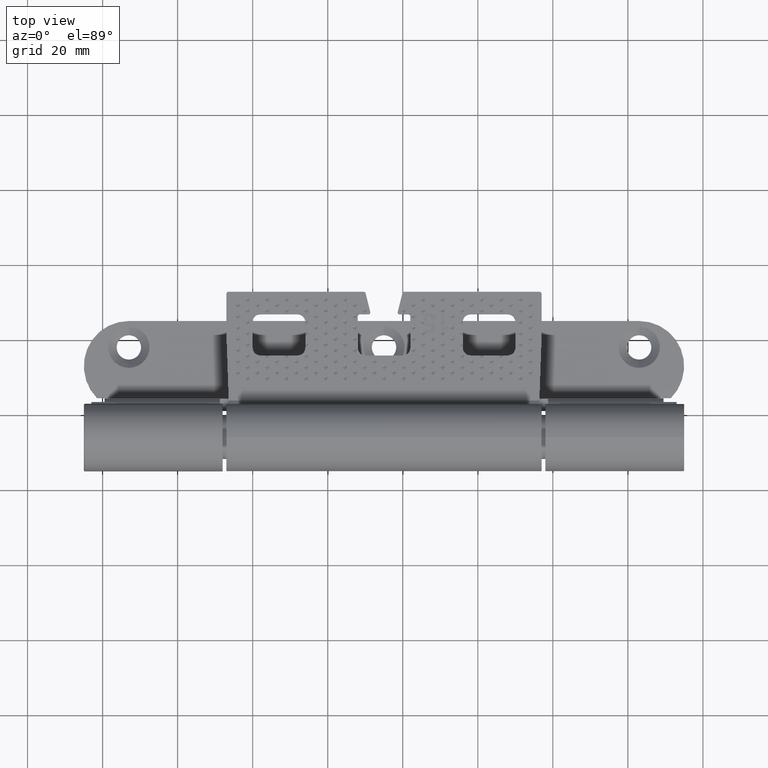
[diagram: clean part render]
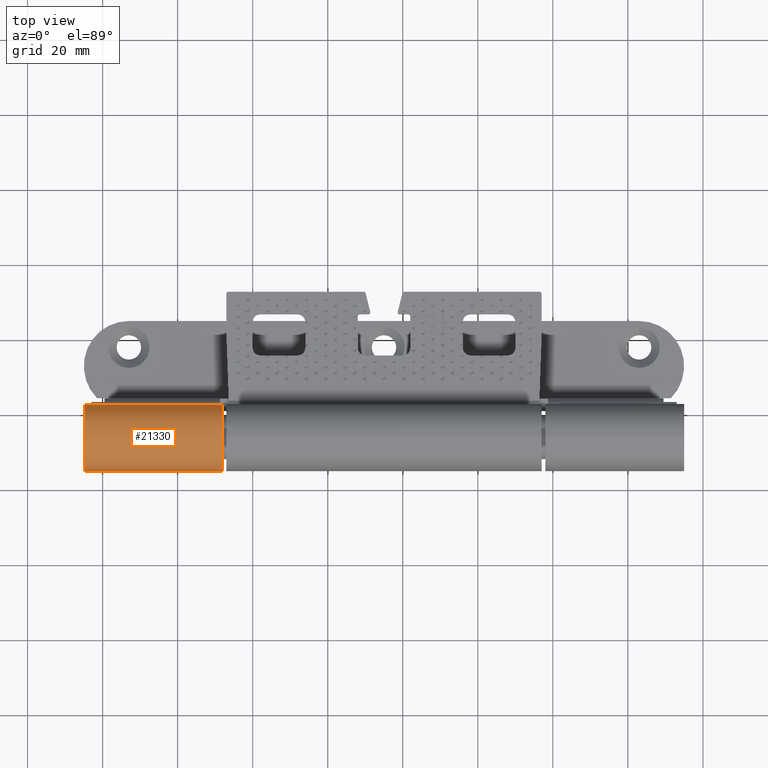
[diagram: same view with one face highlighted and labeled with its STEP entity id]
A machine part, top view. The second image highlights one B-rep face of the part: STEP entity #21330.
In plain terms, the highlighted cylindrical surface (edge-blend (fillet) strip) has radius 9 mm, axis along (1, -0, 0).
Its self-contained STEP definition (entity closure, byte-faithful):
#478 = CARTESIAN_POINT ( 'NONE',  ( 36.80000000000001137, 1.102182119232621658E-15, -8.999999999999984013 ) ) ;
#763 = DIRECTION ( 'NONE',  ( -1.000000000000000000, -5.610155771161907473E-31, -6.170407202813867864E-31 ) ) ;
#2457 = AXIS2_PLACEMENT_3D ( 'NONE', #50746, #17063, #30184 ) ;
#3570 = EDGE_LOOP ( 'NONE', ( #44838, #52500, #8194, #14799 ) ) ;
#5038 = VERTEX_POINT ( 'NONE', #478 ) ;
#8194 = ORIENTED_EDGE ( 'NONE', *, *, #33621, .T. ) ;
#8702 = CARTESIAN_POINT ( 'NONE',  ( 25.49999999999999645, 0.000000000000000000, 9.000000000000007105 ) ) ;
#10941 = DIRECTION ( 'NONE',  ( 0.000000000000000000, 0.000000000000000000, 1.000000000000000000 ) ) ;
#11898 = CIRCLE ( 'NONE', #2457, 9.000000000000007105 ) ;
#12703 = LINE ( 'NONE', #8702, #29732 ) ;
#13249 = AXIS2_PLACEMENT_3D ( 'NONE', #31301, #47602, #10941 ) ;
#14799 = ORIENTED_EDGE ( 'NONE', *, *, #37752, .F. ) ;
#15517 = CARTESIAN_POINT ( 'NONE',  ( 25.49999999999999645, 1.102182119232618503E-15, -9.000000000000007105 ) ) ;
#16092 = CARTESIAN_POINT ( 'NONE',  ( 25.49999999999999645, 0.000000000000000000, 0.000000000000000000 ) ) ;
#17063 = DIRECTION ( 'NONE',  ( -1.000000000000000000, -5.610155771161907473E-31, -6.170407202813867864E-31 ) ) ;
#17325 = CARTESIAN_POINT ( 'NONE',  ( 36.80000000000001137, 5.204170427930421283E-15, 9.000000000000019540 ) ) ;
#20674 = FACE_OUTER_BOUND ( 'NONE', #3570, .T. ) ;
#20967 = CIRCLE ( 'NONE', #13249, 9.000000000000007105 ) ;
#21330 = ADVANCED_FACE ( 'NONE', ( #20674 ), #28950, .T. ) ;
#23880 = DIRECTION ( 'NONE',  ( -1.000000000000000000, -5.610155771161907473E-31, -6.170407202813867864E-31 ) ) ;
#25728 = EDGE_CURVE ( 'NONE', #5038, #48758, #35876, .T. ) ;
#26729 = CARTESIAN_POINT ( 'NONE',  ( 5.645497952523911972E-30, 0.000000000000000000, 9.000000000000007105 ) ) ;
#28440 = DIRECTION ( 'NONE',  ( 0.000000000000000000, 0.000000000000000000, 1.000000000000000000 ) ) ;
#28950 = CYLINDRICAL_SURFACE ( 'NONE', #31688, 9.000000000000007105 ) ;
#29732 = VECTOR ( 'NONE', #38121, 1000.000000000000000 ) ;
#30184 = DIRECTION ( 'NONE',  ( 6.272775502804341478E-31, 0.000000000000000000, 1.000000000000000000 ) ) ;
#31301 = CARTESIAN_POINT ( 'NONE',  ( 36.80000000000001137, 5.204170427930421283E-15, 1.387778780781445676E-14 ) ) ;
#31688 = AXIS2_PLACEMENT_3D ( 'NONE', #16092, #23880, #28440 ) ;
#33130 = CARTESIAN_POINT ( 'NONE',  ( 5.553366482532480465E-30, 1.102182119232613967E-15, -9.000000000000000000 ) ) ;
#33621 = EDGE_CURVE ( 'NONE', #36560, #47384, #12703, .T. ) ;
#35876 = LINE ( 'NONE', #15517, #48077 ) ;
#36560 = VERTEX_POINT ( 'NONE', #17325 ) ;
#37752 = EDGE_CURVE ( 'NONE', #48758, #47384, #11898, .T. ) ;
#38121 = DIRECTION ( 'NONE',  ( -1.000000000000000000, -5.610155771161907473E-31, -6.170407202813867864E-31 ) ) ;
#44838 = ORIENTED_EDGE ( 'NONE', *, *, #25728, .F. ) ;
#47384 = VERTEX_POINT ( 'NONE', #26729 ) ;
#47602 = DIRECTION ( 'NONE',  ( -1.000000000000000000, -5.610155771161907473E-31, -6.170407202813867864E-31 ) ) ;
#48077 = VECTOR ( 'NONE', #763, 1000.000000000000000 ) ;
#48758 = VERTEX_POINT ( 'NONE', #33130 ) ;
#50746 = CARTESIAN_POINT ( 'NONE',  ( 0.000000000000000000, 0.000000000000000000, 0.000000000000000000 ) ) ;
#52500 = ORIENTED_EDGE ( 'NONE', *, *, #52941, .T. ) ;
#52941 = EDGE_CURVE ( 'NONE', #5038, #36560, #20967, .T. ) ;